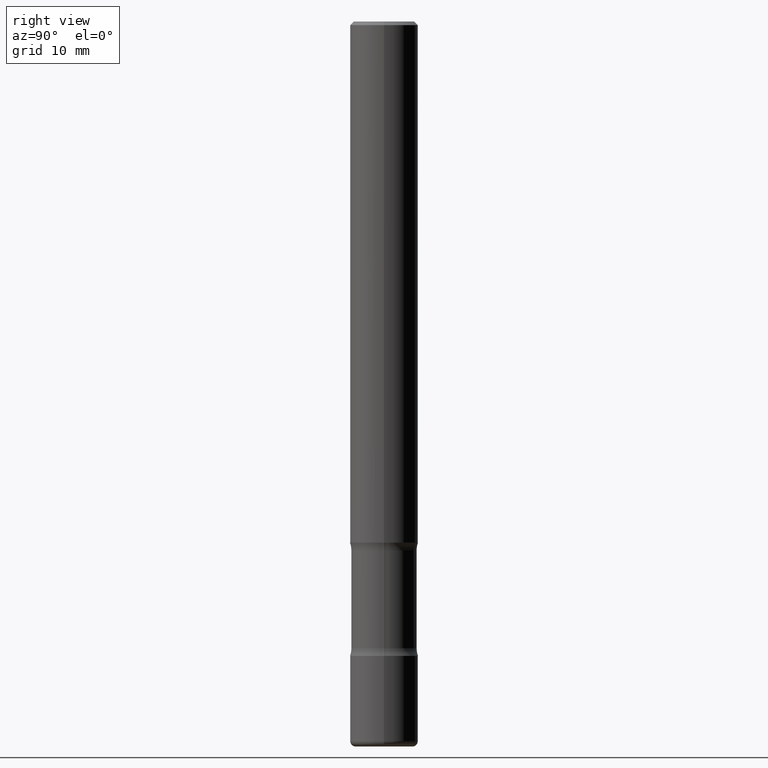
[diagram: clean part render]
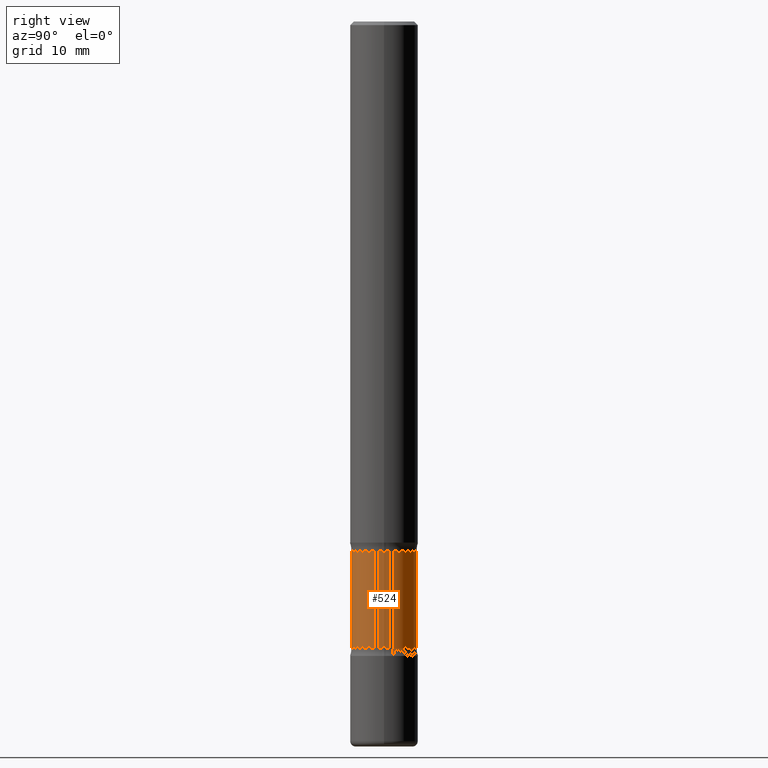
[diagram: same view with one face highlighted and labeled with its STEP entity id]
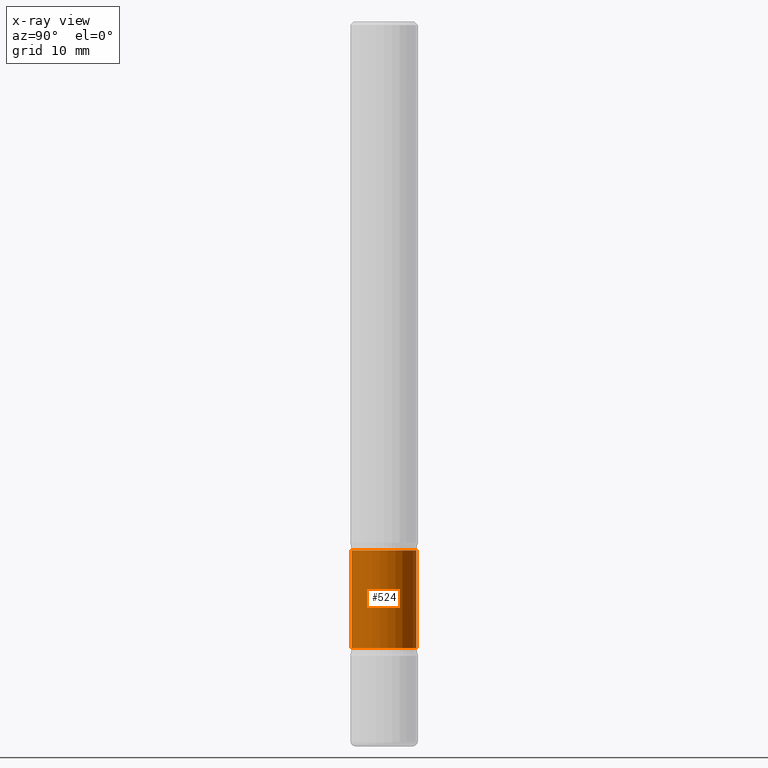
[diagram: x-ray of the same camera — body ghosted, the highlighted face saturated]
A machine part, right view. The second image highlights one B-rep face of the part: STEP entity #524.
The next image is the same camera in x-ray: the body ghosted, the highlighted face saturated — about 0% of this face is hidden behind the body in this view.
In plain terms, the highlighted cylindrical surface (edge-blend (fillet) strip) has radius 4.572 mm, axis along (0, -0, -1).
Its self-contained STEP definition (entity closure, byte-faithful):
#12 = CYLINDRICAL_SURFACE ( 'NONE', #425, 0.1799999999999999378 ) ;
#13 = CARTESIAN_POINT ( 'NONE',  ( 8.454928852112242500E-29, -1.207117036643762880E-14, -3.457353194726919821 ) ) ;
#14 = VERTEX_POINT ( 'NONE', #796 ) ;
#43 = ORIENTED_EDGE ( 'NONE', *, *, #779, .T. ) ;
#50 = AXIS2_PLACEMENT_3D ( 'NONE', #732, #674, #546 ) ;
#95 = EDGE_CURVE ( 'NONE', #203, #281, #423, .T. ) ;
#108 = ORIENTED_EDGE ( 'NONE', *, *, #95, .F. ) ;
#139 = ORIENTED_EDGE ( 'NONE', *, *, #440, .T. ) ;
#146 = AXIS2_PLACEMENT_3D ( 'NONE', #13, #312, #631 ) ;
#148 = CARTESIAN_POINT ( 'NONE',  ( -1.260616507090433870E-15, -0.1800000000000120393, -3.457353194726919376 ) ) ;
#201 = CARTESIAN_POINT ( 'NONE',  ( -1.260616507090447477E-15, -0.1800000000000100686, -2.917646805273079291 ) ) ;
#203 = VERTEX_POINT ( 'NONE', #700 ) ;
#223 = VECTOR ( 'NONE', #515, 39.37007874015748143 ) ;
#247 = VECTOR ( 'NONE', #604, 39.37007874015748143 ) ;
#255 = DIRECTION ( 'NONE',  ( 6.982962677686265133E-15, 1.000000000000000000, -3.035386659626960315E-15 ) ) ;
#266 = CARTESIAN_POINT ( 'NONE',  ( -1.234889639598777160E-15, -0.1800000000000138989, -3.995154743233019001 ) ) ;
#281 = VERTEX_POINT ( 'NONE', #148 ) ;
#312 = DIRECTION ( 'NONE',  ( 2.443605537822500206E-29, -3.494149645189090210E-15, -1.000000000000000000 ) ) ;
#379 = EDGE_CURVE ( 'NONE', #14, #203, #791, .T. ) ;
#420 = CARTESIAN_POINT ( 'NONE',  ( 1.256933281983625156E-15, 0.1799999999999859490, -3.995154743233019889 ) ) ;
#423 = CIRCLE ( 'NONE', #146, 0.1799999999999999933 ) ;
#425 = AXIS2_PLACEMENT_3D ( 'NONE', #438, #496, #255 ) ;
#438 = CARTESIAN_POINT ( 'NONE',  ( 9.769103694291262738E-29, -1.395032945633236056E-14, -3.995154743233019445 ) ) ;
#440 = EDGE_CURVE ( 'NONE', #14, #787, #492, .T. ) ;
#492 = CIRCLE ( 'NONE', #50, 0.1799999999999998823 ) ;
#496 = DIRECTION ( 'NONE',  ( 2.443605537822500206E-29, -3.494149645189090210E-15, -1.000000000000000000 ) ) ;
#515 = DIRECTION ( 'NONE',  ( 2.443605537822499926E-29, -3.494149645189090604E-15, -1.000000000000000000 ) ) ;
#524 = ADVANCED_FACE ( 'NONE', ( #569 ), #12, .T. ) ;
#546 = DIRECTION ( 'NONE',  ( 6.982962677686266711E-15, 1.000000000000000000, -3.035386659626961104E-15 ) ) ;
#569 = FACE_OUTER_BOUND ( 'NONE', #721, .T. ) ;
#598 = LINE ( 'NONE', #266, #223 ) ;
#604 = DIRECTION ( 'NONE',  ( 2.443605537822499926E-29, -3.494149645189090604E-15, -1.000000000000000000 ) ) ;
#631 = DIRECTION ( 'NONE',  ( 6.982962677686265133E-15, 1.000000000000000000, -3.035386659626959132E-15 ) ) ;
#674 = DIRECTION ( 'NONE',  ( 2.443605537822500206E-29, -3.494149645189090210E-15, -1.000000000000000000 ) ) ;
#700 = CARTESIAN_POINT ( 'NONE',  ( 1.256933281983612140E-15, 0.1799999999999879474, -3.457353194726920265 ) ) ;
#721 = EDGE_LOOP ( 'NONE', ( #139, #43, #108, #733 ) ) ;
#732 = CARTESIAN_POINT ( 'NONE',  ( 7.136099330044652239E-29, -1.018535547722120939E-14, -2.917646805273079735 ) ) ;
#733 = ORIENTED_EDGE ( 'NONE', *, *, #379, .F. ) ;
#779 = EDGE_CURVE ( 'NONE', #787, #281, #598, .T. ) ;
#787 = VERTEX_POINT ( 'NONE', #201 ) ;
#791 = LINE ( 'NONE', #420, #247 ) ;
#796 = CARTESIAN_POINT ( 'NONE',  ( 1.256933281983598335E-15, 0.1799999999999897238, -2.917646805273080179 ) ) ;